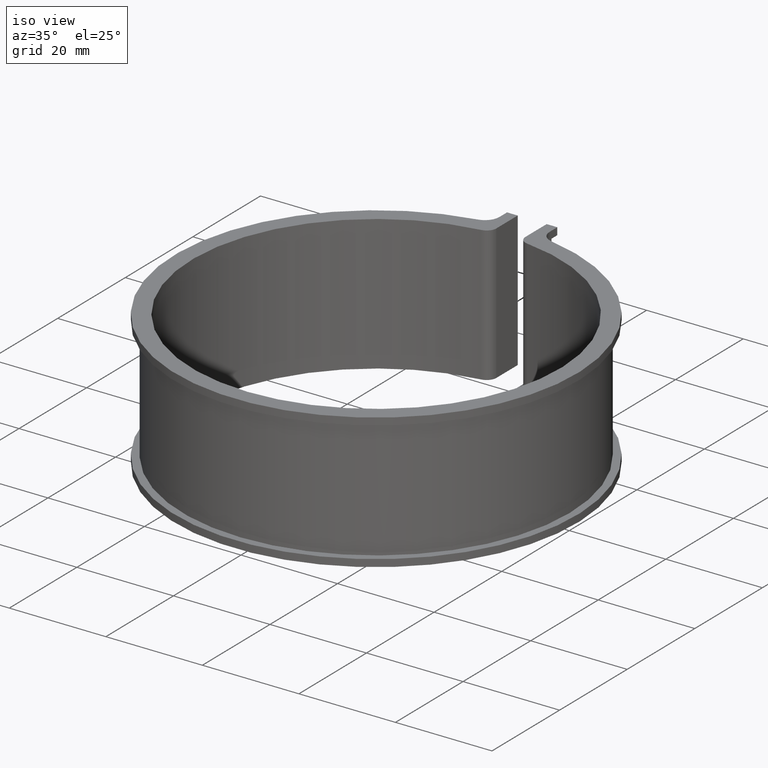
[diagram: clean part render]
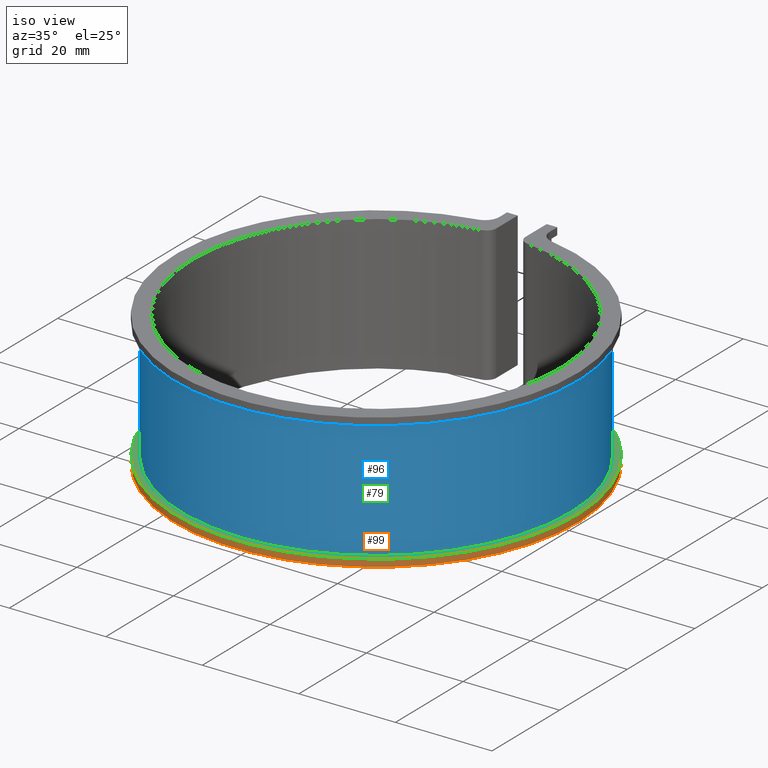
[diagram: same view with three faces highlighted in distinct colors, each labeled with its STEP entity id]
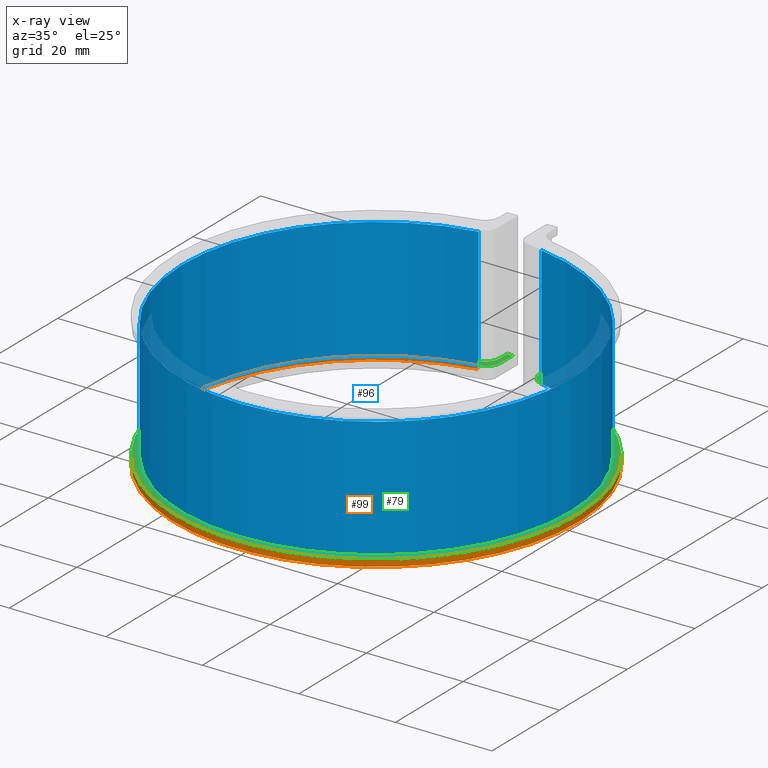
[diagram: x-ray of the same camera — body ghosted, the three highlighted faces saturated]
A machine part, iso view with three faces highlighted in distinct colors.
The next image is the same camera in x-ray (body ghosted, the three faces saturated) — at least one of them is partly hidden behind the body in this view.
Their STEP definitions:

[orange] entity #99 — the highlighted cylindrical surface (partial cylindrical patch) has radius 41.65 mm, axis along (0, 0, -1).
#99 = ADVANCED_FACE( '', ( #150 ), #151, .T. );
#150 = FACE_OUTER_BOUND( '', #202, .T. );
#151 = CYLINDRICAL_SURFACE( '', #203, 41.6500000000000 );
#202 = EDGE_LOOP( '', ( #414, #415, #416, #417 ) );
#203 = AXIS2_PLACEMENT_3D( '', #418, #419, #420 );
#414 = ORIENTED_EDGE( '', *, *, #448, .F. );
#415 = ORIENTED_EDGE( '', *, *, #498, .F. );
#416 = ORIENTED_EDGE( '', *, *, #462, .T. );
#417 = ORIENTED_EDGE( '', *, *, #499, .T. );
#418 = CARTESIAN_POINT( '', ( 0.000000000000000, 0.000000000000000, -14.0000000000000 ) );
#419 = DIRECTION( '', ( 0.000000000000000, 0.000000000000000, -1.00000000000000 ) );
#420 = DIRECTION( '', ( 0.000000000000000, 1.00000000000000, 0.000000000000000 ) );
#448 = EDGE_CURVE( '', #536, #538, #539, .T. );
#462 = EDGE_CURVE( '', #564, #562, #565, .T. );
#498 = EDGE_CURVE( '', #564, #536, #618, .T. );
#499 = EDGE_CURVE( '', #562, #538, #619, .T. );
#536 = VERTEX_POINT( '', #672 );
#538 = VERTEX_POINT( '', #674 );
#539 = CIRCLE( '', #675, 41.6500000000000 );
#562 = VERTEX_POINT( '', #705 );
#564 = VERTEX_POINT( '', #707 );
#565 = CIRCLE( '', #708, 41.6500000000000 );
#618 = LINE( '', #784, #785 );
#619 = LINE( '', #786, #787 );
#672 = CARTESIAN_POINT( '', ( -7.64904815229563, 40.9415994114038, -12.5000000000000 ) );
#674 = CARTESIAN_POINT( '', ( 7.64904815229557, 40.9415994114038, -12.5000000000000 ) );
#675 = AXIS2_PLACEMENT_3D( '', #816, #817, #818 );
#705 = CARTESIAN_POINT( '', ( 7.64904815229557, 40.9415994114038, -14.0000000000000 ) );
#707 = CARTESIAN_POINT( '', ( -7.64904815229563, 40.9415994114038, -14.0000000000000 ) );
#708 = AXIS2_PLACEMENT_3D( '', #844, #845, #846 );
#784 = CARTESIAN_POINT( '', ( -7.64904815229563, 40.9415994114038, -14.0000000000000 ) );
#785 = VECTOR( '', #906, 1000.00000000000 );
#786 = CARTESIAN_POINT( '', ( 7.64904815229557, 40.9415994114038, -14.0000000000000 ) );
#787 = VECTOR( '', #907, 1000.00000000000 );
#816 = CARTESIAN_POINT( '', ( 0.000000000000000, 0.000000000000000, -12.5000000000000 ) );
#817 = DIRECTION( '', ( 0.000000000000000, 0.000000000000000, 1.00000000000000 ) );
#818 = DIRECTION( '', ( 1.00000000000000, 0.000000000000000, 0.000000000000000 ) );
#844 = CARTESIAN_POINT( '', ( 0.000000000000000, 0.000000000000000, -14.0000000000000 ) );
#845 = DIRECTION( '', ( 0.000000000000000, 0.000000000000000, 1.00000000000000 ) );
#846 = DIRECTION( '', ( 1.00000000000000, 0.000000000000000, 0.000000000000000 ) );
#906 = DIRECTION( '', ( 0.000000000000000, 0.000000000000000, 1.00000000000000 ) );
#907 = DIRECTION( '', ( 0.000000000000000, 0.000000000000000, 1.00000000000000 ) );

[blue] entity #96 — the highlighted cylindrical surface (partial cylindrical patch) has radius 40.15 mm, axis along (0, 0, -1).
#96 = ADVANCED_FACE( '', ( #144 ), #145, .T. );
#144 = FACE_OUTER_BOUND( '', #196, .T. );
#145 = CYLINDRICAL_SURFACE( '', #197, 40.1500000000000 );
#196 = EDGE_LOOP( '', ( #393, #394, #395, #396 ) );
#197 = AXIS2_PLACEMENT_3D( '', #397, #398, #399 );
#393 = ORIENTED_EDGE( '', *, *, #496, .F. );
#394 = ORIENTED_EDGE( '', *, *, #454, .F. );
#395 = ORIENTED_EDGE( '', *, *, #497, .T. );
#396 = ORIENTED_EDGE( '', *, *, #490, .T. );
#397 = CARTESIAN_POINT( '', ( 0.000000000000000, 0.000000000000000, -14.0000000000000 ) );
#398 = DIRECTION( '', ( 0.000000000000000, 0.000000000000000, -1.00000000000000 ) );
#399 = DIRECTION( '', ( 1.00000000000000, -6.07153216591882E-017, 0.000000000000000 ) );
#454 = EDGE_CURVE( '', #548, #534, #550, .T. );
#490 = EDGE_CURVE( '', #608, #606, #609, .T. );
#496 = EDGE_CURVE( '', #534, #606, #616, .T. );
#497 = EDGE_CURVE( '', #548, #608, #617, .T. );
#534 = VERTEX_POINT( '', #670 );
#548 = VERTEX_POINT( '', #687 );
#550 = CIRCLE( '', #689, 40.1500000000000 );
#606 = VERTEX_POINT( '', #766 );
#608 = VERTEX_POINT( '', #768 );
#609 = CIRCLE( '', #769, 40.1500000000000 );
#616 = LINE( '', #780, #781 );
#617 = LINE( '', #782, #783 );
#670 = CARTESIAN_POINT( '', ( -6.51332560834300, 39.6181661554356, -12.5000000000000 ) );
#687 = CARTESIAN_POINT( '', ( 6.51332560834301, 39.6181661554356, -12.5000000000000 ) );
#689 = AXIS2_PLACEMENT_3D( '', #828, #829, #830 );
#766 = CARTESIAN_POINT( '', ( -6.51332560834300, 39.6181661554356, 12.5000000000000 ) );
#768 = CARTESIAN_POINT( '', ( 6.51332560834299, 39.6181661554356, 12.5000000000000 ) );
#769 = AXIS2_PLACEMENT_3D( '', #894, #895, #896 );
#780 = CARTESIAN_POINT( '', ( -6.51332560834300, 39.6181661554356, -14.0000000000000 ) );
#781 = VECTOR( '', #904, 1000.00000000000 );
#782 = CARTESIAN_POINT( '', ( 6.51332560834301, 39.6181661554356, -14.0000000000000 ) );
#783 = VECTOR( '', #905, 1000.00000000000 );
#828 = CARTESIAN_POINT( '', ( 0.000000000000000, 0.000000000000000, -12.5000000000000 ) );
#829 = DIRECTION( '', ( 0.000000000000000, 0.000000000000000, -1.00000000000000 ) );
#830 = DIRECTION( '', ( 1.00000000000000, 0.000000000000000, 0.000000000000000 ) );
#894 = CARTESIAN_POINT( '', ( 0.000000000000000, 0.000000000000000, 12.5000000000000 ) );
#895 = DIRECTION( '', ( 0.000000000000000, 0.000000000000000, -1.00000000000000 ) );
#896 = DIRECTION( '', ( 1.00000000000000, 0.000000000000000, 0.000000000000000 ) );
#904 = DIRECTION( '', ( 0.000000000000000, 0.000000000000000, 1.00000000000000 ) );
#905 = DIRECTION( '', ( 0.000000000000000, 0.000000000000000, 1.00000000000000 ) );

[green] entity #79 — the highlighted planar face has unit normal (0, 0, -1).
#79 = ADVANCED_FACE( '', ( #110 ), #111, .F. );
#110 = FACE_OUTER_BOUND( '', #162, .T. );
#111 = PLANE( '', #163 );
#162 = EDGE_LOOP( '', ( #238, #239, #240, #241, #242, #243, #244, #245, #246, #247, #248, #249 ) );
#163 = AXIS2_PLACEMENT_3D( '', #250, #251, #252 );
#238 = ORIENTED_EDGE( '', *, *, #446, .F. );
#239 = ORIENTED_EDGE( '', *, *, #429, .T. );
#240 = ORIENTED_EDGE( '', *, *, #440, .T. );
#241 = ORIENTED_EDGE( '', *, *, #443, .T. );
#242 = ORIENTED_EDGE( '', *, *, #447, .T. );
#243 = ORIENTED_EDGE( '', *, *, #448, .T. );
#244 = ORIENTED_EDGE( '', *, *, #449, .T. );
#245 = ORIENTED_EDGE( '', *, *, #450, .T. );
#246 = ORIENTED_EDGE( '', *, *, #451, .T. );
#247 = ORIENTED_EDGE( '', *, *, #452, .T. );
#248 = ORIENTED_EDGE( '', *, *, #453, .F. );
#249 = ORIENTED_EDGE( '', *, *, #454, .T. );
#250 = CARTESIAN_POINT( '', ( -8.20000000000000, 43.8905741589239, -12.5000000000000 ) );
#251 = DIRECTION( '', ( 0.000000000000000, 0.000000000000000, -1.00000000000000 ) );
#252 = DIRECTION( '', ( 0.000000000000000, -1.00000000000000, 0.000000000000000 ) );
#429 = EDGE_CURVE( '', #503, #500, #504, .T. );
#440 = EDGE_CURVE( '', #500, #523, #525, .T. );
#443 = EDGE_CURVE( '', #523, #529, #530, .T. );
#446 = EDGE_CURVE( '', #503, #534, #535, .T. );
#447 = EDGE_CURVE( '', #529, #536, #537, .T. );
#448 = EDGE_CURVE( '', #536, #538, #539, .T. );
#449 = EDGE_CURVE( '', #538, #540, #541, .T. );
#450 = EDGE_CURVE( '', #540, #542, #543, .T. );
#451 = EDGE_CURVE( '', #542, #544, #545, .T. );
#452 = EDGE_CURVE( '', #544, #546, #547, .T. );
#453 = EDGE_CURVE( '', #548, #546, #549, .T. );
#454 = EDGE_CURVE( '', #548, #534, #550, .T. );
#500 = VERTEX_POINT( '', #620 );
#503 = VERTEX_POINT( '', #624 );
#504 = LINE( '', #625, #626 );
#523 = VERTEX_POINT( '', #652 );
#525 = LINE( '', #655, #656 );
#529 = VERTEX_POINT( '', #662 );
#530 = LINE( '', #663, #664 );
#534 = VERTEX_POINT( '', #670 );
#535 = CIRCLE( '', #671, 3.00000000000000 );
#536 = VERTEX_POINT( '', #672 );
#537 = CIRCLE( '', #673, 3.00000000000000 );
#538 = VERTEX_POINT( '', #674 );
#539 = CIRCLE( '', #675, 41.6500000000000 );
#540 = VERTEX_POINT( '', #676 );
#541 = CIRCLE( '', #677, 3.00000000000000 );
#542 = VERTEX_POINT( '', #678 );
#543 = LINE( '', #679, #680 );
#544 = VERTEX_POINT( '', #681 );
#545 = LINE( '', #682, #683 );
#546 = VERTEX_POINT( '', #684 );
#547 = LINE( '', #685, #686 );
#548 = VERTEX_POINT( '', #687 );
#549 = CIRCLE( '', #688, 3.00000000000000 );
#550 = CIRCLE( '', #689, 40.1500000000000 );
#620 = CARTESIAN_POINT( '', ( -3.99999999999999, 46.1500000000000, -12.5000000000000 ) );
#624 = CARTESIAN_POINT( '', ( -4.00000000000000, 42.5784276365391, -12.5000000000000 ) );
#625 = CARTESIAN_POINT( '', ( -4.00000000000000, 39.9502503121069, -12.5000000000000 ) );
#626 = VECTOR( '', #789, 1000.00000000000 );
#652 = CARTESIAN_POINT( '', ( -5.20000000000000, 46.1500000000000, -12.5000000000000 ) );
#655 = CARTESIAN_POINT( '', ( -4.00000000000000, 46.1500000000000, -12.5000000000000 ) );
#656 = VECTOR( '', #804, 1000.00000000000 );
#662 = CARTESIAN_POINT( '', ( -5.20000000000000, 43.8905741589239, -12.5000000000000 ) );
#663 = CARTESIAN_POINT( '', ( -5.20000000000000, 46.1500000000000, -12.5000000000000 ) );
#664 = VECTOR( '', #807, 1000.00000000000 );
#670 = CARTESIAN_POINT( '', ( -6.51332560834300, 39.6181661554356, -12.5000000000000 ) );
#671 = AXIS2_PLACEMENT_3D( '', #810, #811, #812 );
#672 = CARTESIAN_POINT( '', ( -7.64904815229563, 40.9415994114038, -12.5000000000000 ) );
#673 = AXIS2_PLACEMENT_3D( '', #813, #814, #815 );
#674 = CARTESIAN_POINT( '', ( 7.64904815229557, 40.9415994114038, -12.5000000000000 ) );
#675 = AXIS2_PLACEMENT_3D( '', #816, #817, #818 );
#676 = CARTESIAN_POINT( '', ( 5.19999999999999, 43.8905741589239, -12.5000000000000 ) );
#677 = AXIS2_PLACEMENT_3D( '', #819, #820, #821 );
#678 = CARTESIAN_POINT( '', ( 5.19999999999999, 46.1500000000000, -12.5000000000000 ) );
#679 = CARTESIAN_POINT( '', ( 5.19999999999999, 43.8905741589239, -12.5000000000000 ) );
#680 = VECTOR( '', #822, 1000.00000000000 );
#681 = CARTESIAN_POINT( '', ( 4.00000000000000, 46.1500000000000, -12.5000000000000 ) );
#682 = CARTESIAN_POINT( '', ( 5.19999999999998, 46.1500000000000, -12.5000000000000 ) );
#683 = VECTOR( '', #823, 1000.00000000000 );
#684 = CARTESIAN_POINT( '', ( 4.00000000000000, 42.5784276365391, -12.5000000000000 ) );
#685 = CARTESIAN_POINT( '', ( 4.00000000000000, 46.1500000000000, -12.5000000000000 ) );
#686 = VECTOR( '', #824, 1000.00000000000 );
#687 = CARTESIAN_POINT( '', ( 6.51332560834301, 39.6181661554356, -12.5000000000000 ) );
#688 = AXIS2_PLACEMENT_3D( '', #825, #826, #827 );
#689 = AXIS2_PLACEMENT_3D( '', #828, #829, #830 );
#789 = DIRECTION( '', ( 0.000000000000000, 1.00000000000000, 0.000000000000000 ) );
#804 = DIRECTION( '', ( -1.00000000000000, 0.000000000000000, 0.000000000000000 ) );
#807 = DIRECTION( '', ( -6.50521303491303E-017, -1.00000000000000, 0.000000000000000 ) );
#810 = CARTESIAN_POINT( '', ( -7.00000000000000, 42.5784276365391, -12.5000000000000 ) );
#811 = DIRECTION( '', ( 0.000000000000000, 0.000000000000000, -1.00000000000000 ) );
#812 = DIRECTION( '', ( -1.00000000000000, 0.000000000000000, 0.000000000000000 ) );
#813 = CARTESIAN_POINT( '', ( -8.20000000000000, 43.8905741589239, -12.5000000000000 ) );
#814 = DIRECTION( '', ( 0.000000000000000, 0.000000000000000, -1.00000000000000 ) );
#815 = DIRECTION( '', ( 1.00000000000000, 0.000000000000000, 0.000000000000000 ) );
#816 = CARTESIAN_POINT( '', ( 0.000000000000000, 0.000000000000000, -12.5000000000000 ) );
#817 = DIRECTION( '', ( 0.000000000000000, 0.000000000000000, 1.00000000000000 ) );
#818 = DIRECTION( '', ( 1.00000000000000, 0.000000000000000, 0.000000000000000 ) );
#819 = CARTESIAN_POINT( '', ( 8.19999999999999, 43.8905741589239, -12.5000000000000 ) );
#820 = DIRECTION( '', ( 0.000000000000000, 0.000000000000000, -1.00000000000000 ) );
#821 = DIRECTION( '', ( -1.00000000000000, 0.000000000000000, 0.000000000000000 ) );
#822 = DIRECTION( '', ( 6.50521303491303E-017, 1.00000000000000, 0.000000000000000 ) );
#823 = DIRECTION( '', ( -1.00000000000000, 0.000000000000000, 0.000000000000000 ) );
#824 = DIRECTION( '', ( 0.000000000000000, -1.00000000000000, 0.000000000000000 ) );
#825 = CARTESIAN_POINT( '', ( 7.00000000000000, 42.5784276365391, -12.5000000000000 ) );
#826 = DIRECTION( '', ( 0.000000000000000, 0.000000000000000, -1.00000000000000 ) );
#827 = DIRECTION( '', ( -1.00000000000000, 0.000000000000000, 0.000000000000000 ) );
#828 = CARTESIAN_POINT( '', ( 0.000000000000000, 0.000000000000000, -12.5000000000000 ) );
#829 = DIRECTION( '', ( 0.000000000000000, 0.000000000000000, -1.00000000000000 ) );
#830 = DIRECTION( '', ( 1.00000000000000, 0.000000000000000, 0.000000000000000 ) );